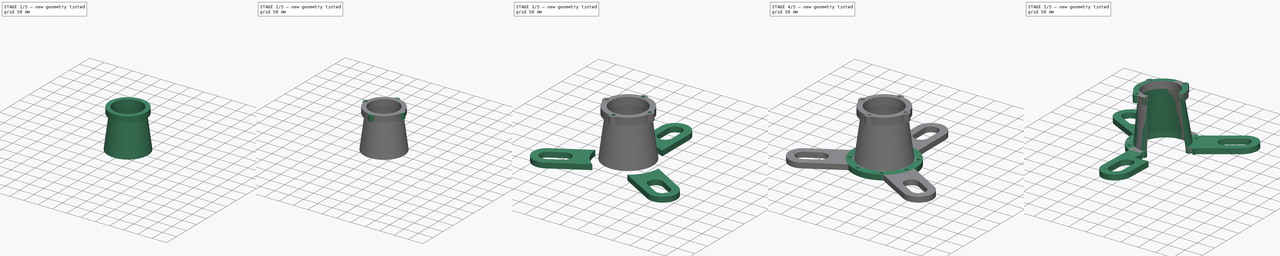
[diagram: build sequence overview — one tinted view per stage of 5, left to right]
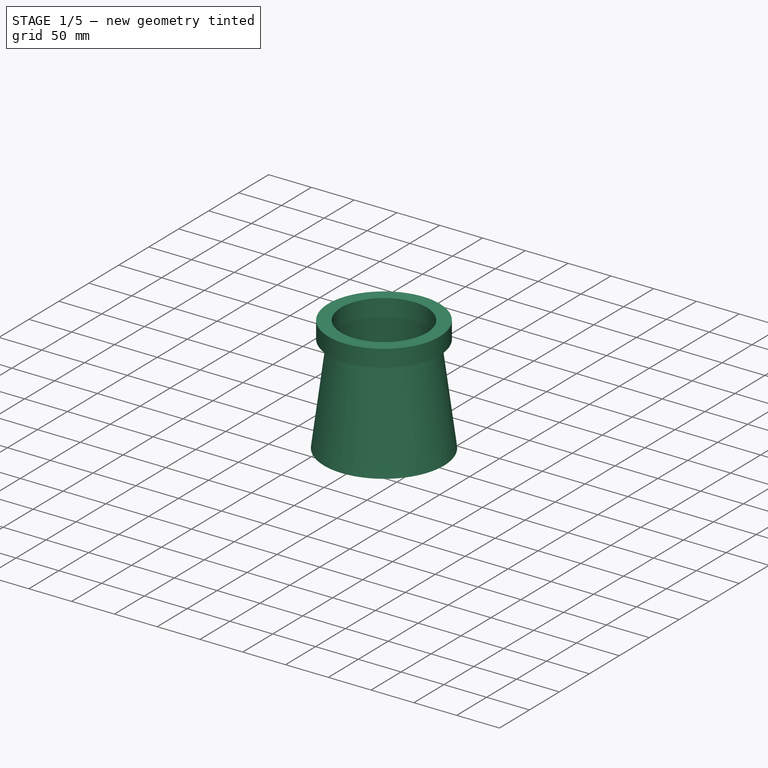
[diagram: stage 1 of 5 — iso view after this stage's code; geometry added in this stage tinted green]
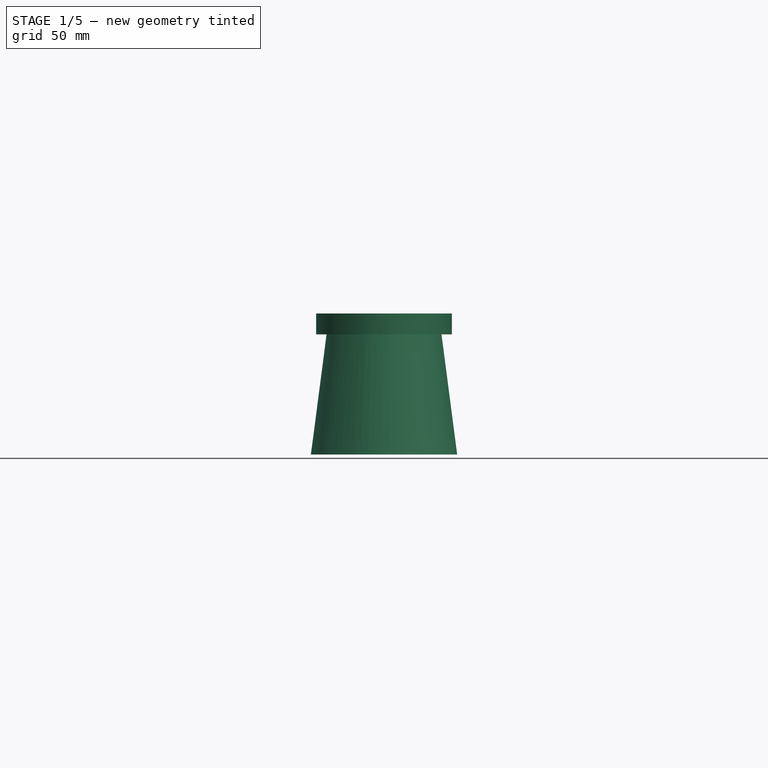
[diagram: stage 1 of 5 — front view after this stage's code; geometry added in this stage tinted green]
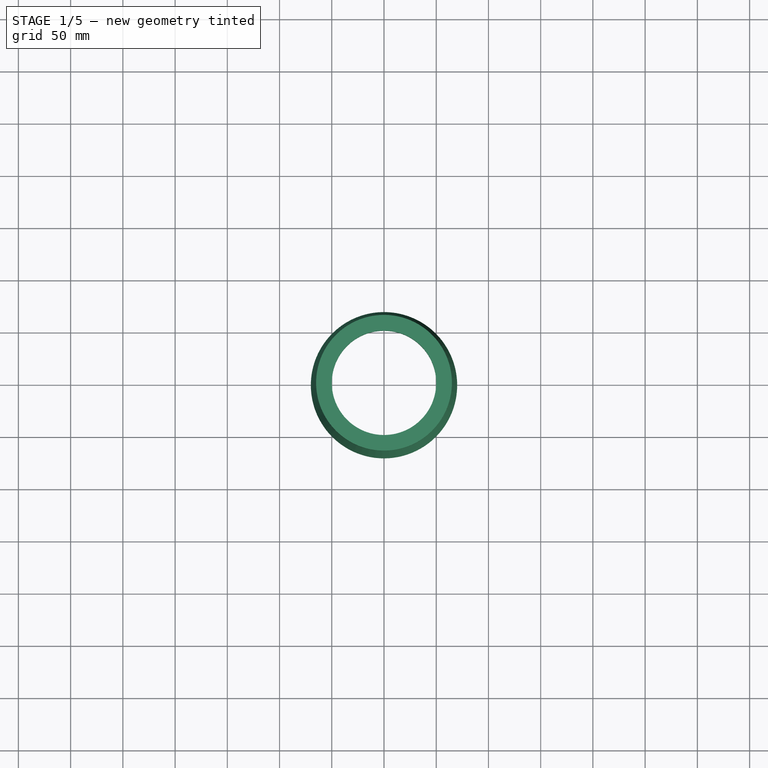
[diagram: stage 1 of 5 — top view after this stage's code; geometry added in this stage tinted green]
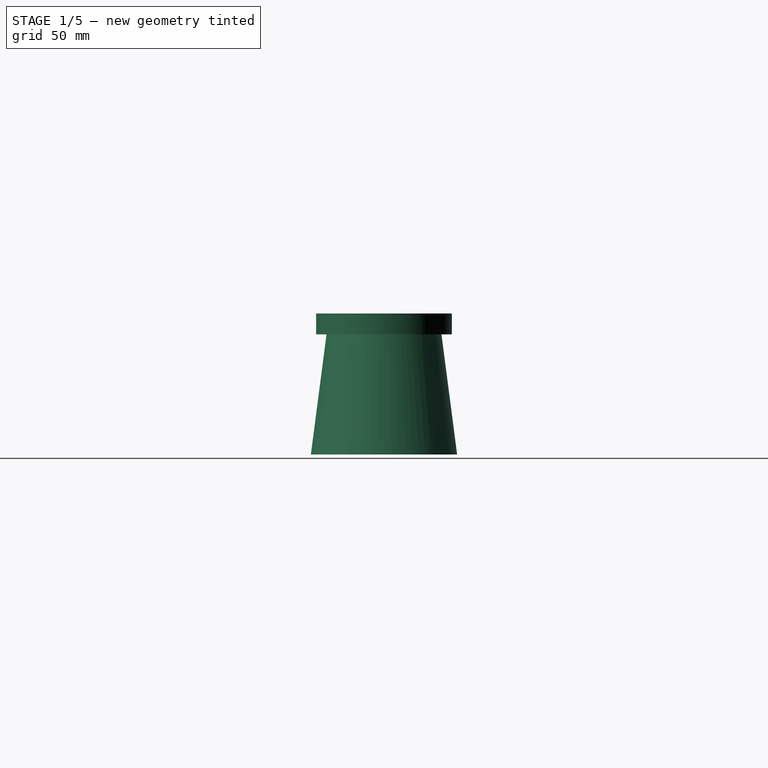
[diagram: stage 1 of 5 — right view after this stage's code; geometry added in this stage tinted green]
FCSTD DOCUMENT  (FreeCAD 0.16R)
Label: Ejer35-2
License: All rights reserved
LicenseURL: http://en.wikipedia.org/wiki/All_rights_reserved
objects: Sketcher::SketchObject×8, PartDesign::Pad×6, PartDesign::PolarPattern×3, PartDesign::Pocket×2, Part::Cone×1, Part::Thickness×1, Part::Box×1, Part::MultiFuse×1, Part::Cut×1
note: 32 computed .brp shape members not serialized (recipe doc carries the construction recipe); baked Part::Feature solids carry a one-line shape summary decoded from their .brp

FEATURE [Part::Cone] Cone  label="Cono"
  Angle = 360
  Height = 115
  Placement = pos=(0,0,15) rot=(0,0,1;0rad)
  Radius1 = 65
  Radius2 = 50
FEATURE [Part::Thickness] Thickness
  Faces = -> Cone [Face3,Face2]
  Intersection = false
  Join = 2
  Mode = 1
  SelfIntersection = false
  Value = 5
FEATURE [Sketcher::SketchObject] Sketch005
  Placement = pos=(0,0,130) rot=(0,0,1;0rad)
  Support = -> Thickness [Face2]
  sketch-geometry (2):
    g0: Circle CenterX=0 CenterY=0 CenterZ=0 NormalX=0 NormalY=0 NormalZ=1 Radius=50
    g1: Circle CenterX=0 CenterY=0 CenterZ=0 NormalX=0 NormalY=0 NormalZ=1 Radius=65
  constraints (5):
    c: Coincident(g0,g-1)
    c: PointOnObject(g1,g-1)
    c: Coincident(g0,g1)
    c: Radius(g0) = 50
    c: Radius(g1) = 65
FEATURE [PartDesign::Pad] Pad004
  Length = 20
  Length2 = 100
  Sketch = -> Sketch005
  Type = 0
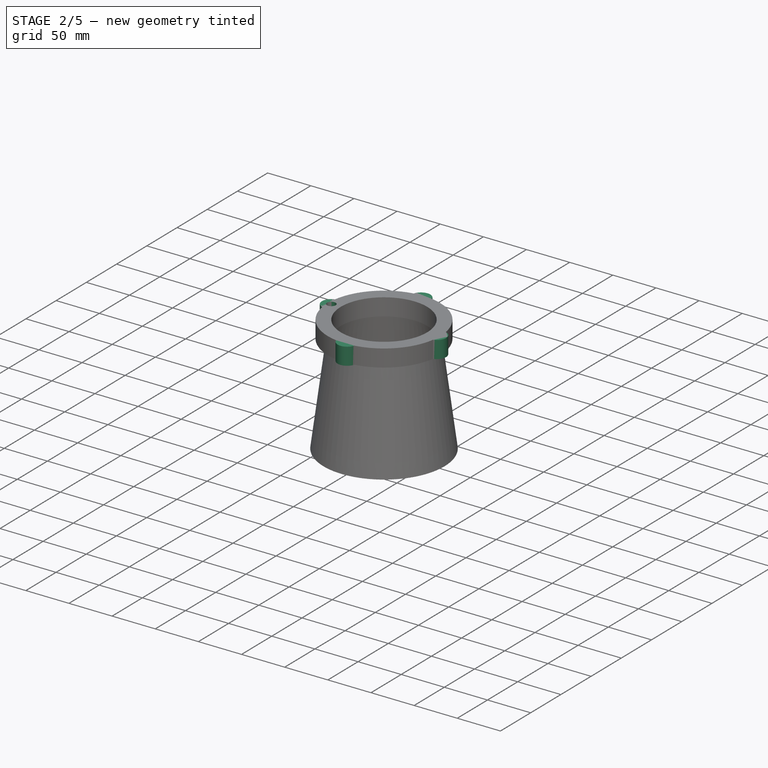
[diagram: stage 2 of 5 — iso view after this stage's code; geometry added in this stage tinted green]
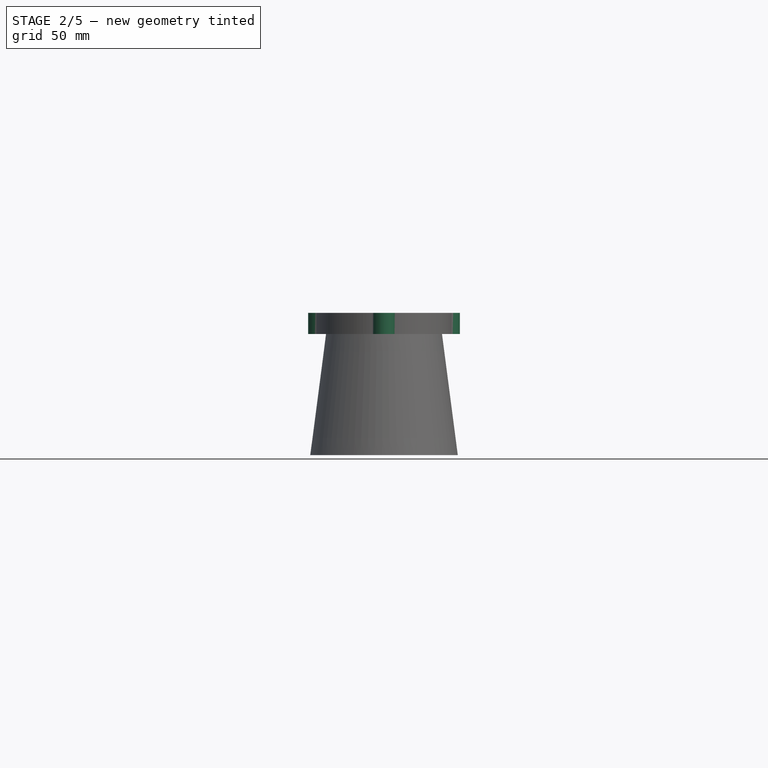
[diagram: stage 2 of 5 — front view after this stage's code; geometry added in this stage tinted green]
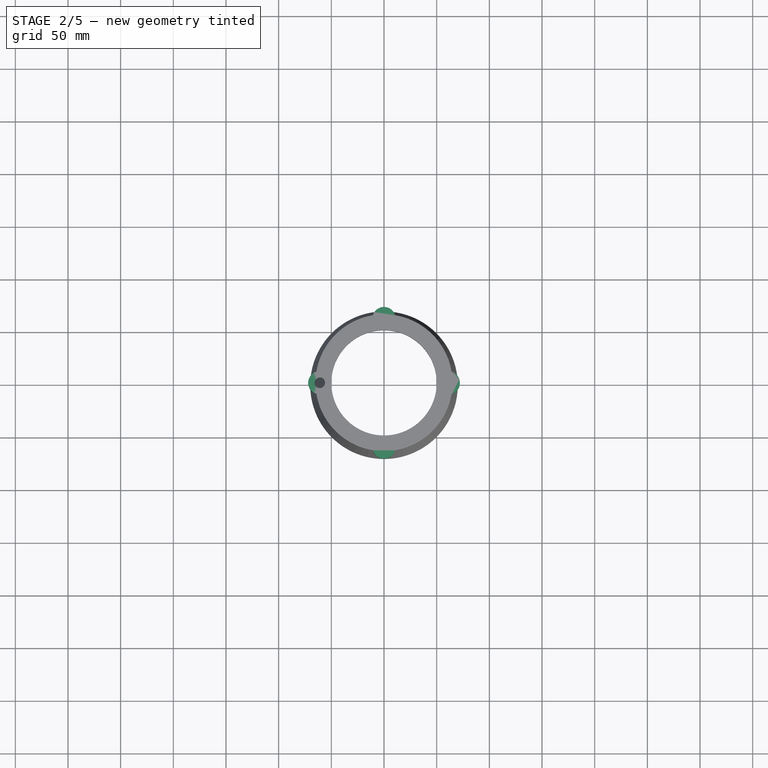
[diagram: stage 2 of 5 — top view after this stage's code; geometry added in this stage tinted green]
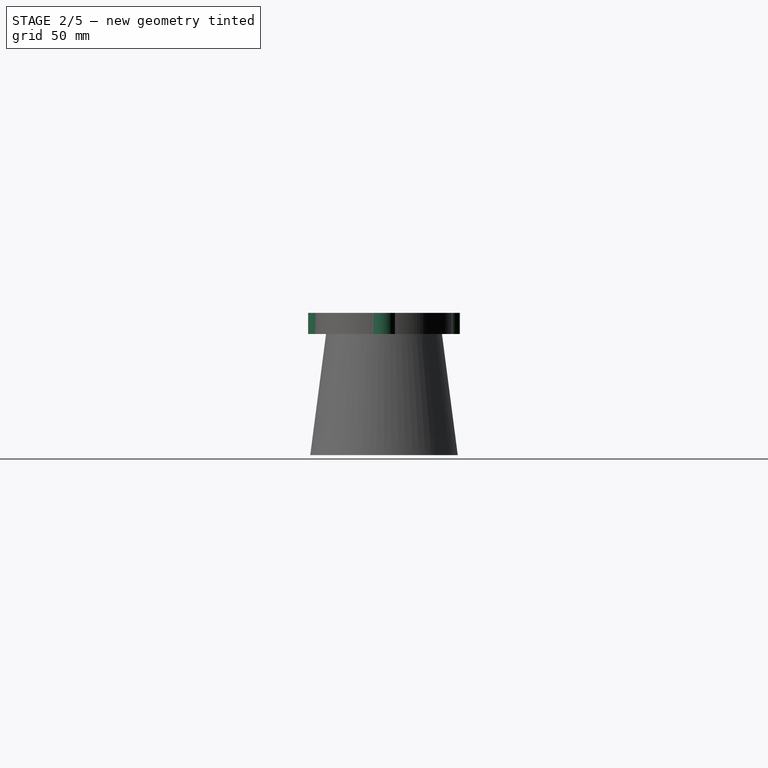
[diagram: stage 2 of 5 — right view after this stage's code; geometry added in this stage tinted green]
FEATURE [Sketcher::SketchObject] Sketch006
  Placement = pos=(0,0,150) rot=(0,0,1;0rad)
  Support = -> Pad004 [Face6]
  sketch-geometry (2):
    g0: Circle [constr] CenterX=0 CenterY=0 CenterZ=0 NormalX=0 NormalY=0 NormalZ=1 Radius=50
    g1: Circle CenterX=-61 CenterY=0 CenterZ=0 NormalX=0 NormalY=0 NormalZ=1 Radius=11
  constraints (5):
    c: Coincident(g0,g-1)
    c: Radius(g0) = 50
    c: PointOnObject(g1,g-1)
    c: Radius(g1) = 11
    c: Tangent(g1,g0)
FEATURE [PartDesign::Pad] Pad005
  Length = 20
  Length2 = 100
  Reversed = true
  Sketch = -> Sketch006
  Type = 0
FEATURE [PartDesign::PolarPattern] PolarPattern001
  Angle = 360
  Axis = -> Sketch006 [N_Axis]
  Occurrences = 4
  Originals = -> [Pad005]
FEATURE [Sketcher::SketchObject] Sketch007
  ExternalGeometry = -> [PolarPattern001]
  Placement = pos=(0,0,150) rot=(0,0,1;0rad)
  Support = -> PolarPattern001 [Face9]
  sketch-geometry (1):
    g0: Circle CenterX=-61 CenterY=0 CenterZ=0 NormalX=0 NormalY=0 NormalZ=1 Radius=5
  constraints (2):
    c: Coincident(g0,g-3)
    c: Radius(g0) = 5
FEATURE [PartDesign::Pocket] Pocket001
  Length = 20
  Sketch = -> Sketch007
  Type = 0
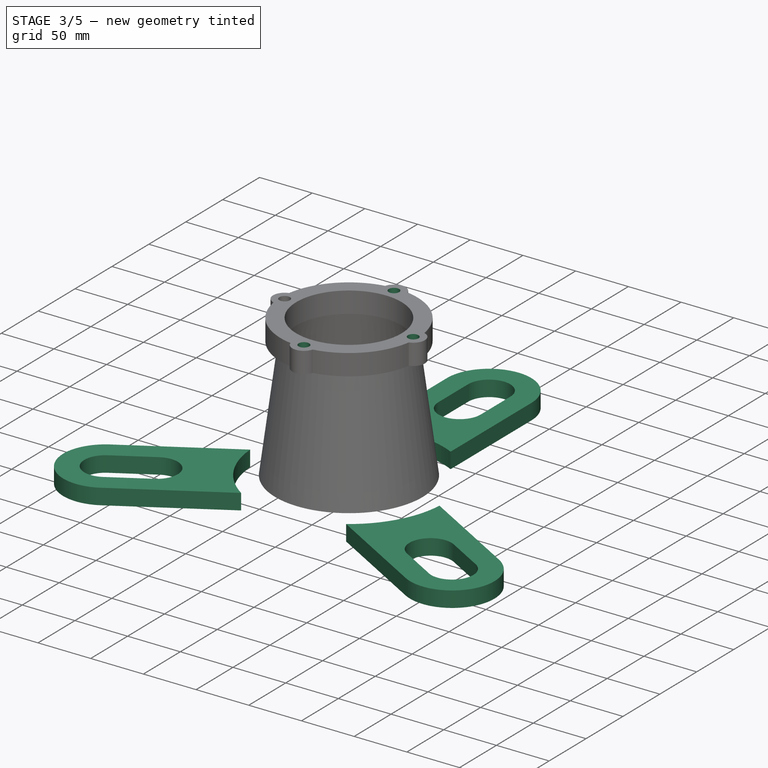
[diagram: stage 3 of 5 — iso view after this stage's code; geometry added in this stage tinted green]
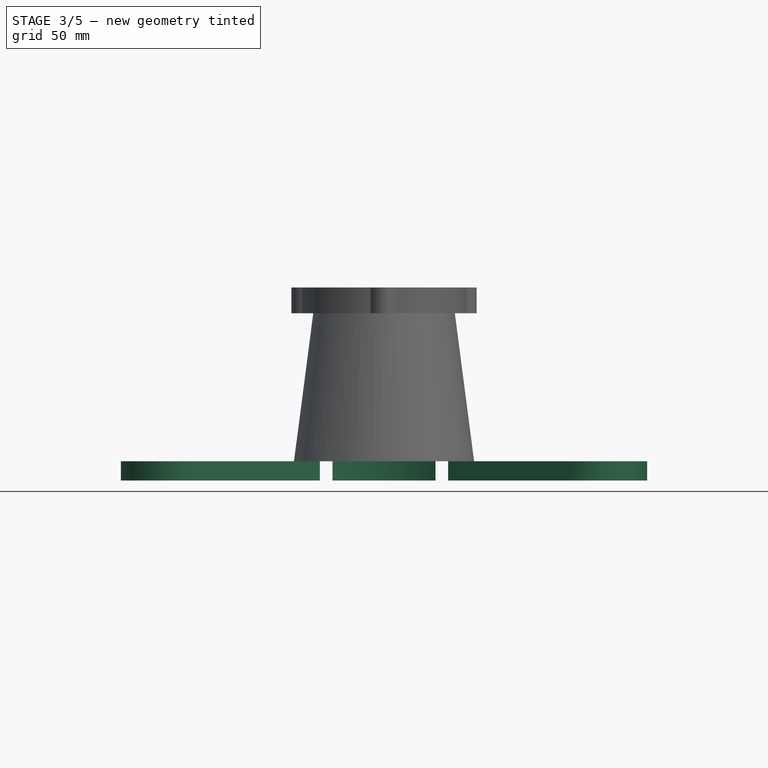
[diagram: stage 3 of 5 — front view after this stage's code; geometry added in this stage tinted green]
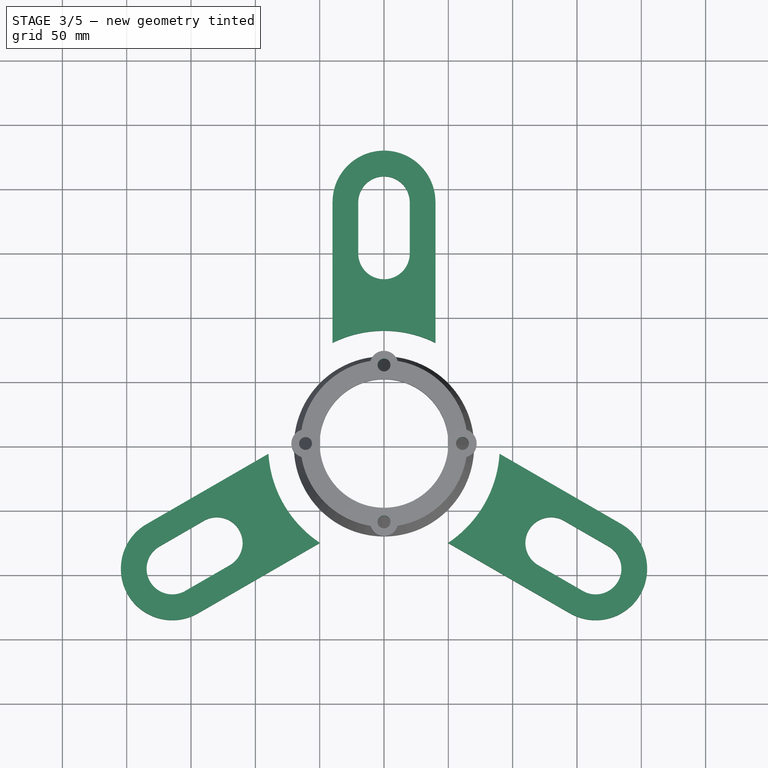
[diagram: stage 3 of 5 — top view after this stage's code; geometry added in this stage tinted green]
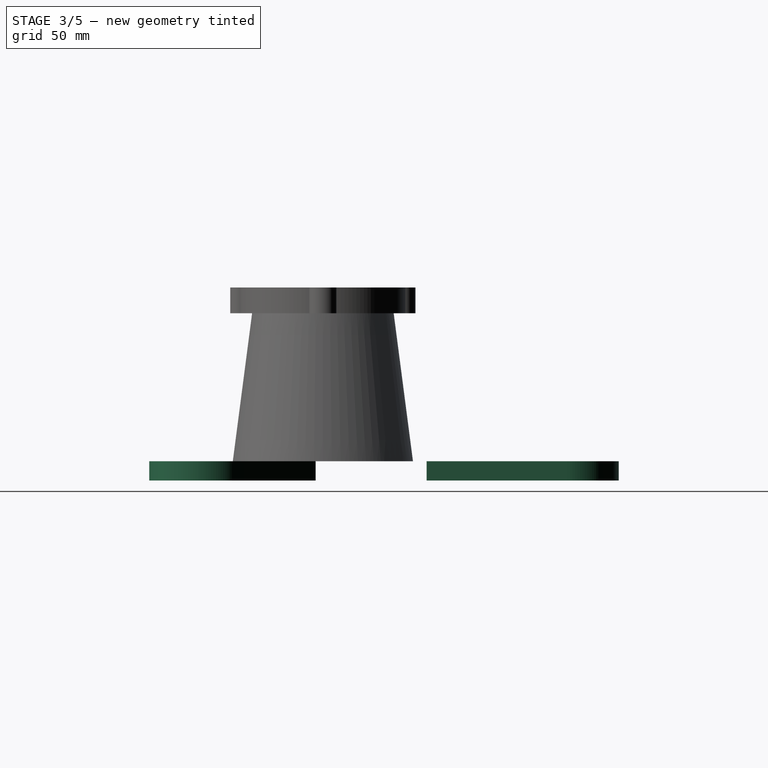
[diagram: stage 3 of 5 — right view after this stage's code; geometry added in this stage tinted green]
FEATURE [Sketcher::SketchObject] Sketch002
  sketch-geometry (11):
    g0: Circle [constr] CenterX=0 CenterY=0 CenterZ=0 NormalX=0 NormalY=0 NormalZ=1 Radius=150
    g1: LineSegment [constr] StartX=0 StartY=0 StartZ=0 EndX=-189.847 EndY=-109.608 EndZ=0
    g2: LineSegment [constr] StartX=0 StartY=0 StartZ=0 EndX=189.847 EndY=-109.608 EndZ=0
    g3: ArcOfCircle CenterX=-164.545 CenterY=-95 CenterZ=0 NormalX=0 NormalY=0 NormalZ=1 Radius=20 StartAngle=2.0944 EndAngle=5.23599
    g4: ArcOfCircle CenterX=-129.904 CenterY=-75 CenterZ=0 NormalX=0 NormalY=0 NormalZ=1 Radius=20 StartAngle=5.23599 EndAngle=8.37758
    g5: LineSegment StartX=-154.545 StartY=-112.321 StartZ=0 EndX=-119.904 EndY=-92.3205 EndZ=0
    g6: LineSegment StartX=-174.545 StartY=-77.6795 StartZ=0 EndX=-139.904 EndY=-57.6795 EndZ=0
    g7: LineSegment StartX=-184.545 StartY=-60.359 StartZ=0 EndX=-89.8212 EndY=-5.67027 EndZ=0
    g8: LineSegment StartX=-144.545 StartY=-129.641 StartZ=0 EndX=-49.8212 EndY=-74.9523 EndZ=0
    g9: ArcOfCircle CenterX=-164.545 CenterY=-95 CenterZ=0 NormalX=0 NormalY=0 NormalZ=1 Radius=40 StartAngle=2.0944 EndAngle=5.23599
    g10: ArcOfCircle CenterX=0 CenterY=0 CenterZ=0 NormalX=0 NormalY=0 NormalZ=1 Radius=90 StartAngle=3.20464 EndAngle=4.12575
  constraints (28):
    c: Coincident(g0,g-1)
    c: Radius(g0) = 150
    c: Coincident(g1,g-1)
    c: Coincident(g2,g-1)
    c: Symmetric(g2,g1,g-2)
    c: Angle(g1,g2) = 2.0944
    c: Tangent(g3,g6) = 1.5708
    c: Tangent(g3,g5) = -1.5708
    c: Tangent(g5,g4) = -1.5708
    c: Tangent(g6,g4) = 1.5708
    c: Equal(g3,g4)
    c: PointOnObject(g3,g1)
    c: PointOnObject(g4,g1)
    c: Radius(g3) = 20
    c: Distance(g3,g4) = 40
    c: Symmetric(g8,g7,g1)
    c: Parallel(g8,g7)
    c: Distance(g7,g8) = 80
    c: Coincident(g9,g3)
    c: Coincident(g9,g7)
    c: Coincident(g9,g8)
    c: Tangent(g9,g8)
    c: Tangent(g9,g7)
    c: Coincident(g10,g-1)
    c: Coincident(g10,g7)
    c: Coincident(g10,g8)
    c: Radius(g10) = 90
    c: PointOnObject(g4,g0)
FEATURE [PartDesign::Pad] Pad001
  Length = 15
  Length2 = 100
  Sketch = -> Sketch002
  Type = 0
FEATURE [Sketcher::SketchObject] Sketch003
  Placement = pos=(0,0,0) rot=(0,0,1;2.0944rad)
  sketch-geometry (11):
    g0: Circle [constr] CenterX=0 CenterY=0 CenterZ=0 NormalX=0 NormalY=0 NormalZ=1 Radius=150
    g1: LineSegment [constr] StartX=0 StartY=0 StartZ=0 EndX=-189.847 EndY=-109.608 EndZ=0
    g2: LineSegment [constr] StartX=0 StartY=0 StartZ=0 EndX=189.847 EndY=-109.608 EndZ=0
    g3: ArcOfCircle CenterX=-164.545 CenterY=-95 CenterZ=0 NormalX=0 NormalY=0 NormalZ=1 Radius=20 StartAngle=2.0944 EndAngle=5.23599
    g4: ArcOfCircle CenterX=-129.904 CenterY=-75 CenterZ=0 NormalX=0 NormalY=0 NormalZ=1 Radius=20 StartAngle=5.23599 EndAngle=8.37758
    g5: LineSegment StartX=-154.545 StartY=-112.321 StartZ=0 EndX=-119.904 EndY=-92.3205 EndZ=0
    g6: LineSegment StartX=-174.545 StartY=-77.6795 StartZ=0 EndX=-139.904 EndY=-57.6795 EndZ=0
    g7: LineSegment StartX=-184.545 StartY=-60.359 StartZ=0 EndX=-89.8212 EndY=-5.67027 EndZ=0
    g8: LineSegment StartX=-144.545 StartY=-129.641 StartZ=0 EndX=-49.8212 EndY=-74.9523 EndZ=0
    g9: ArcOfCircle CenterX=-164.545 CenterY=-95 CenterZ=0 NormalX=0 NormalY=0 NormalZ=1 Radius=40 StartAngle=2.0944 EndAngle=5.23599
    g10: ArcOfCircle CenterX=0 CenterY=0 CenterZ=0 NormalX=0 NormalY=0 NormalZ=1 Radius=90 StartAngle=3.20464 EndAngle=4.12575
  constraints (28):
    c: Coincident(g0,g-1)
    c: Radius(g0) = 150
    c: Coincident(g1,g-1)
    c: Coincident(g2,g-1)
    c: Symmetric(g2,g1,g-2)
    c: Angle(g1,g2) = 2.0944
    c: Tangent(g3,g6) = 1.5708
    c: Tangent(g3,g5) = -1.5708
    c: Tangent(g5,g4) = -1.5708
    c: Tangent(g6,g4) = 1.5708
    c: Equal(g3,g4)
    c: PointOnObject(g3,g1)
    c: PointOnObject(g4,g1)
    c: Radius(g3) = 20
    c: Distance(g3,g4) = 40
    c: Symmetric(g8,g7,g1)
    c: Parallel(g8,g7)
    c: Distance(g7,g8) = 80
    c: Coincident(g9,g3)
    c: Coincident(g9,g7)
    c: Coincident(g9,g8)
    c: Tangent(g9,g8)
    c: Tangent(g9,g7)
    c: Coincident(g10,g-1)
    c: Coincident(g10,g7)
    c: Coincident(g10,g8)
    c: Radius(g10) = 90
    c: PointOnObject(g4,g0)
FEATURE [Sketcher::SketchObject] Sketch004
  Placement = pos=(0,0,0) rot=(0,0,1;4.18879rad)
  sketch-geometry (11):
    g0: Circle [constr] CenterX=0 CenterY=0 CenterZ=0 NormalX=0 NormalY=0 NormalZ=1 Radius=150
    g1: LineSegment [constr] StartX=0 StartY=0 StartZ=0 EndX=-189.847 EndY=-109.608 EndZ=0
    g2: LineSegment [constr] StartX=0 StartY=0 StartZ=0 EndX=189.847 EndY=-109.608 EndZ=0
    g3: ArcOfCircle CenterX=-164.545 CenterY=-95 CenterZ=0 NormalX=0 NormalY=0 NormalZ=1 Radius=20 StartAngle=2.0944 EndAngle=5.23599
    g4: ArcOfCircle CenterX=-129.904 CenterY=-75 CenterZ=0 NormalX=0 NormalY=0 NormalZ=1 Radius=20 StartAngle=5.23599 EndAngle=8.37758
    g5: LineSegment StartX=-154.545 StartY=-112.321 StartZ=0 EndX=-119.904 EndY=-92.3205 EndZ=0
    g6: LineSegment StartX=-174.545 StartY=-77.6795 StartZ=0 EndX=-139.904 EndY=-57.6795 EndZ=0
    g7: LineSegment StartX=-184.545 StartY=-60.359 StartZ=0 EndX=-89.8212 EndY=-5.67027 EndZ=0
    g8: LineSegment StartX=-144.545 StartY=-129.641 StartZ=0 EndX=-49.8212 EndY=-74.9523 EndZ=0
    g9: ArcOfCircle CenterX=-164.545 CenterY=-95 CenterZ=0 NormalX=0 NormalY=0 NormalZ=1 Radius=40 StartAngle=2.0944 EndAngle=5.23599
    g10: ArcOfCircle CenterX=0 CenterY=0 CenterZ=0 NormalX=0 NormalY=0 NormalZ=1 Radius=90 StartAngle=3.20464 EndAngle=4.12575
  constraints (28):
    c: Coincident(g0,g-1)
    c: Radius(g0) = 150
    c: Coincident(g1,g-1)
    c: Coincident(g2,g-1)
    c: Symmetric(g2,g1,g-2)
    c: Angle(g1,g2) = 2.0944
    c: Tangent(g3,g6) = 1.5708
    c: Tangent(g3,g5) = -1.5708
    c: Tangent(g5,g4) = -1.5708
    c: Tangent(g6,g4) = 1.5708
    c: Equal(g3,g4)
    c: PointOnObject(g3,g1)
    c: PointOnObject(g4,g1)
    c: Radius(g3) = 20
    c: Distance(g3,g4) = 40
    c: Symmetric(g8,g7,g1)
    c: Parallel(g8,g7)
    c: Distance(g7,g8) = 80
    c: Coincident(g9,g3)
    c: Coincident(g9,g7)
    c: Coincident(g9,g8)
    c: Tangent(g9,g8)
    c: Tangent(g9,g7)
    c: Coincident(g10,g-1)
    c: Coincident(g10,g7)
    c: Coincident(g10,g8)
    c: Radius(g10) = 90
    c: PointOnObject(g4,g0)
FEATURE [PartDesign::Pad] Pad002
  Length = 15
  Length2 = 100
  Placement = pos=(0,0,0) rot=(0,0,1;2.0944rad)
  Sketch = -> Sketch003
  Type = 0
FEATURE [PartDesign::Pad] Pad003
  Length = 15
  Length2 = 100
  Placement = pos=(0,0,0) rot=(0,0,1;4.18879rad)
  Sketch = -> Sketch004
  Type = 0
FEATURE [PartDesign::PolarPattern] PolarPattern002
  Angle = 360
  Axis = -> Sketch007 [N_Axis]
  Occurrences = 4
  Originals = -> [Pocket001]
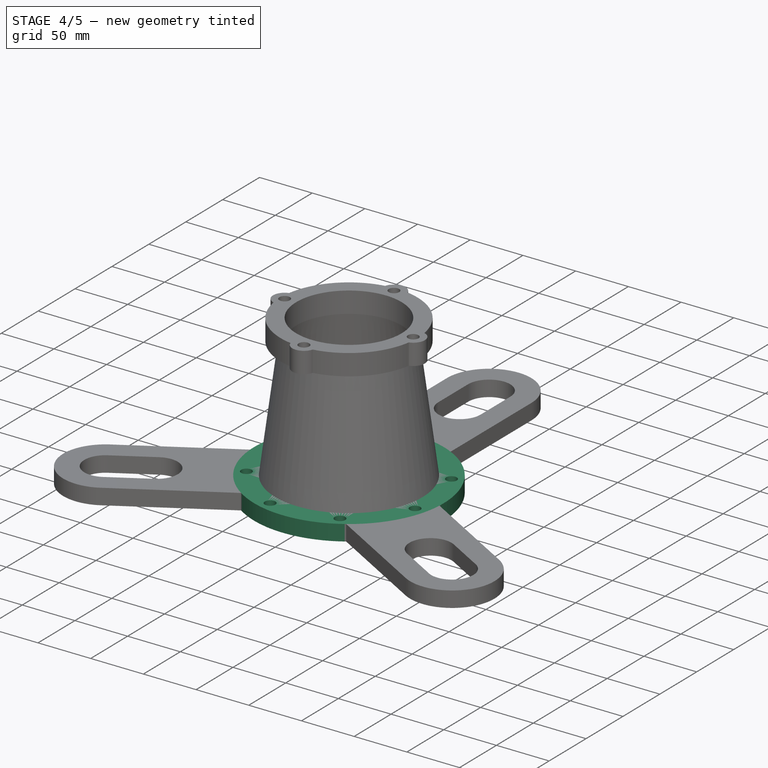
[diagram: stage 4 of 5 — iso view after this stage's code; geometry added in this stage tinted green]
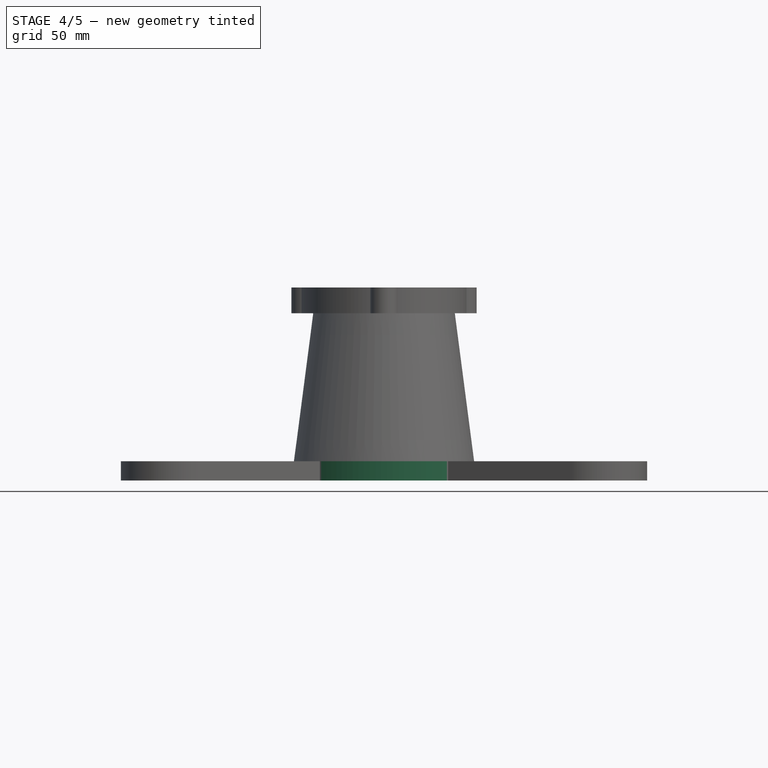
[diagram: stage 4 of 5 — front view after this stage's code; geometry added in this stage tinted green]
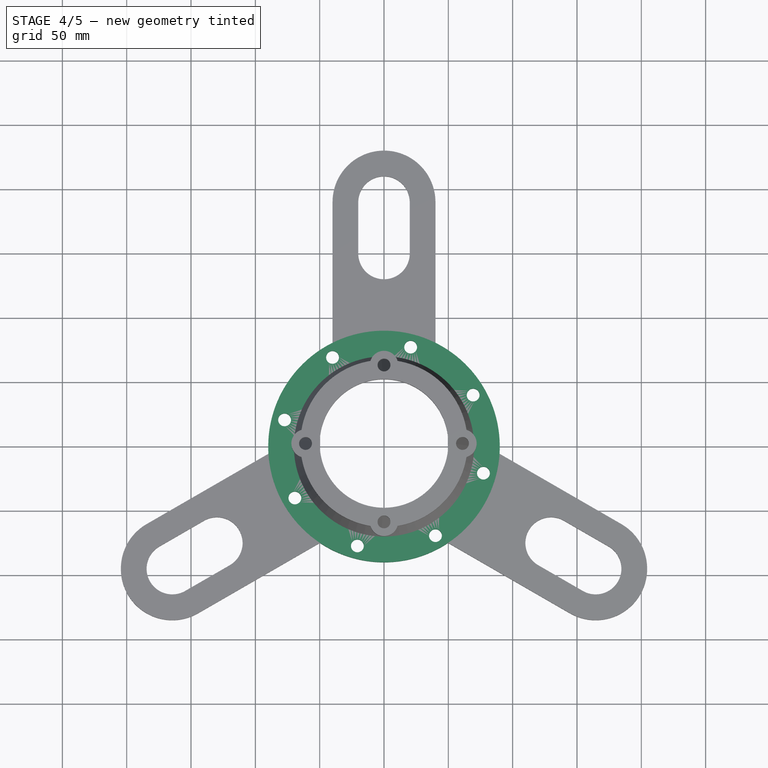
[diagram: stage 4 of 5 — top view after this stage's code; geometry added in this stage tinted green]
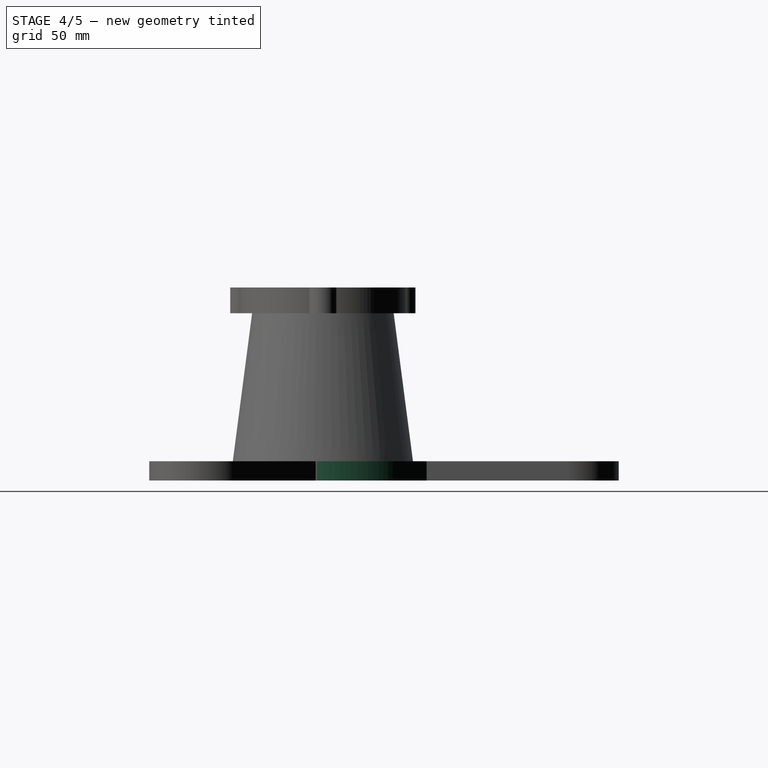
[diagram: stage 4 of 5 — right view after this stage's code; geometry added in this stage tinted green]
FEATURE [Sketcher::SketchObject] Sketch
  sketch-geometry (2):
    g0: Circle CenterX=0 CenterY=0 CenterZ=0 NormalX=0 NormalY=0 NormalZ=1 Radius=65
    g1: Circle CenterX=0 CenterY=0 CenterZ=0 NormalX=0 NormalY=0 NormalZ=1 Radius=90
  constraints (4):
    c: Coincident(g0,g-1)
    c: Coincident(g1,g-1)
    c: Radius(g0) = 65
    c: Radius(g1) = 90
FEATURE [PartDesign::Pad] Pad
  Length = 15
  Length2 = 100
  Sketch = -> Sketch
  Type = 0
FEATURE [Sketcher::SketchObject] Sketch001
  Placement = pos=(0,0,15) rot=(0,0,1;0rad)
  Support = -> Pad [Face4]
  sketch-geometry (4):
    g0: LineSegment [constr] StartX=0 StartY=0 StartZ=0 EndX=-170.6 EndY=-98.4959 EndZ=0
    g1: LineSegment [constr] StartX=0 StartY=0 StartZ=0 EndX=170.6 EndY=-98.4959 EndZ=0
    g2: Circle [constr] CenterX=0 CenterY=0 CenterZ=0 NormalX=0 NormalY=0 NormalZ=1 Radius=80
    g3: Circle CenterX=-69.282 CenterY=-40 CenterZ=0 NormalX=0 NormalY=0 NormalZ=1 Radius=5
  constraints (9):
    c: Coincident(g0,g-1)
    c: Coincident(g1,g-1)
    c: Angle(g0,g1) = 2.0944
    c: Symmetric(g0,g1,g-2)
    c: Coincident(g2,g-1)
    c: Radius(g2) = 80
    c: PointOnObject(g3,g2)
    c: PointOnObject(g3,g0)
    c: Radius(g3) = 5
FEATURE [PartDesign::Pocket] Pocket
  Length = 5
  Sketch = -> Sketch001
  Type = 1
FEATURE [PartDesign::PolarPattern] PolarPattern
  Angle = 360
  Axis = -> Sketch001 [N_Axis]
  Occurrences = 8
  Originals = -> [Pocket]
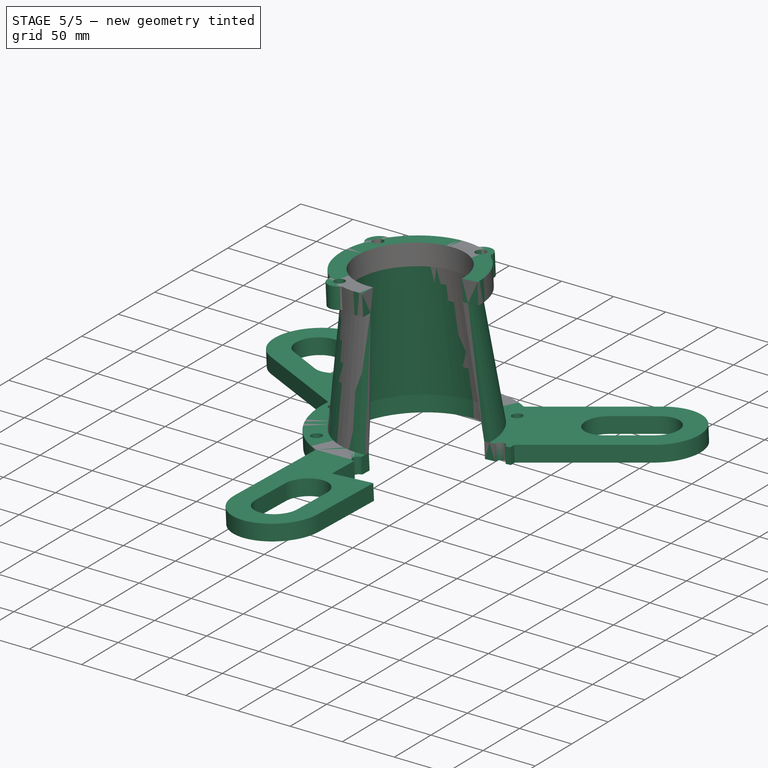
[diagram: stage 5 of 5 — iso view after this stage's code; geometry added in this stage tinted green]
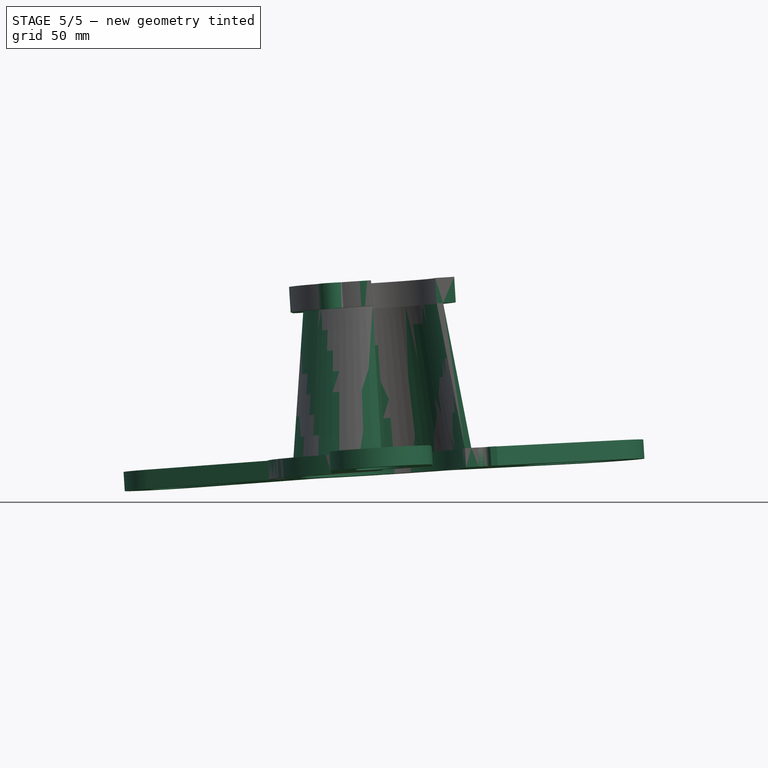
[diagram: stage 5 of 5 — front view after this stage's code; geometry added in this stage tinted green]
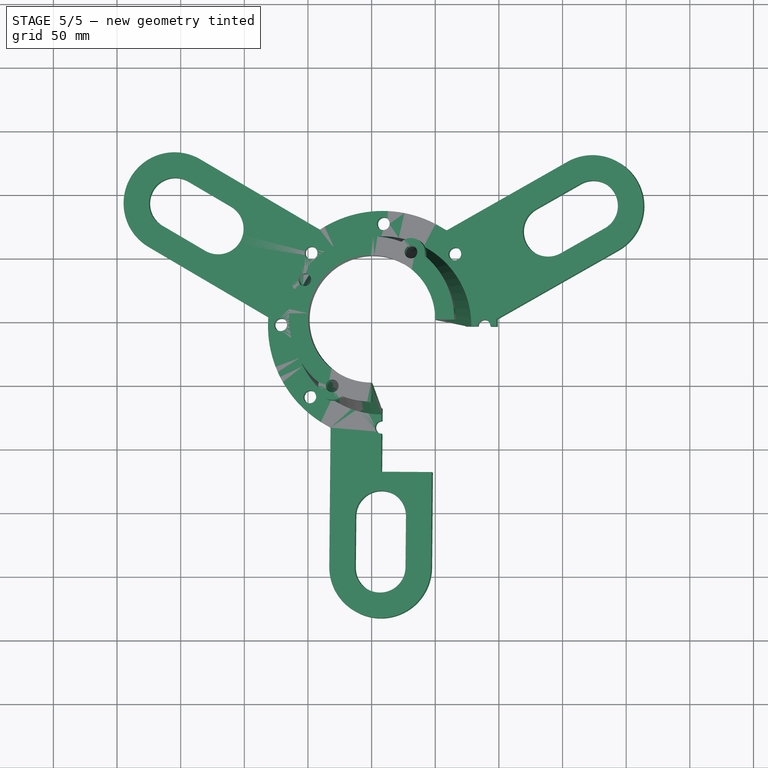
[diagram: stage 5 of 5 — top view after this stage's code; geometry added in this stage tinted green]
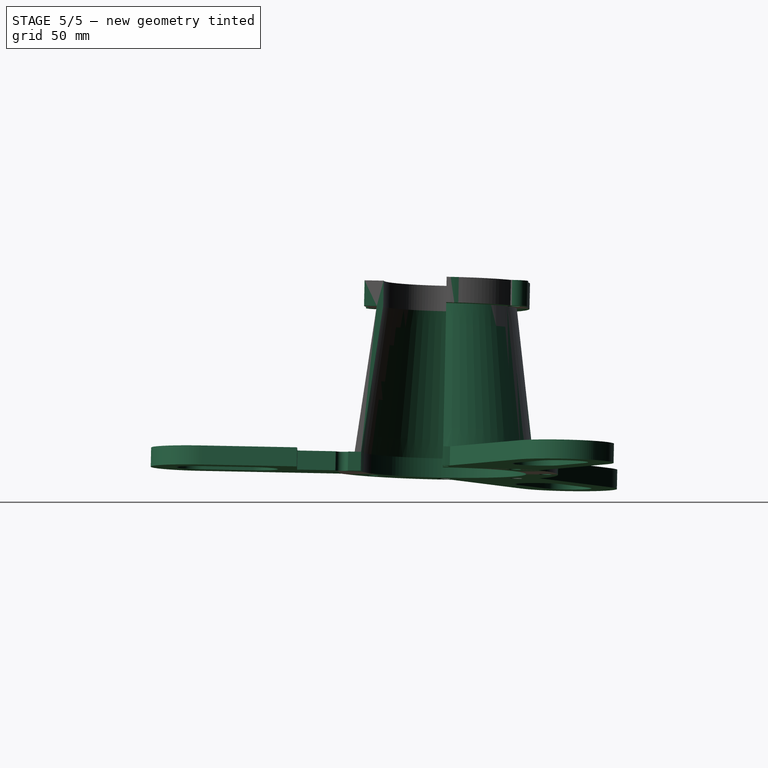
[diagram: stage 5 of 5 — right view after this stage's code; geometry added in this stage tinted green]
FEATURE [Part::Box] Box  label="Cubo"
  Height = 160
  Length = 115
  Placement = pos=(0,0,0) rot=(0,0,1;3.66519rad)
  Width = 108
FEATURE [Part::MultiFuse] Fusion
  Shapes = -> [PolarPattern002,Pad003,Pad002,Pad001,PolarPattern]
FEATURE [Part::Cut] Cut
  Base = -> Fusion
  Placement = pos=(9.3358,-3.03885,0.321651) rot=(-0.048785,-0.044258,0.997828;1.04053rad)
  Tool = -> Box
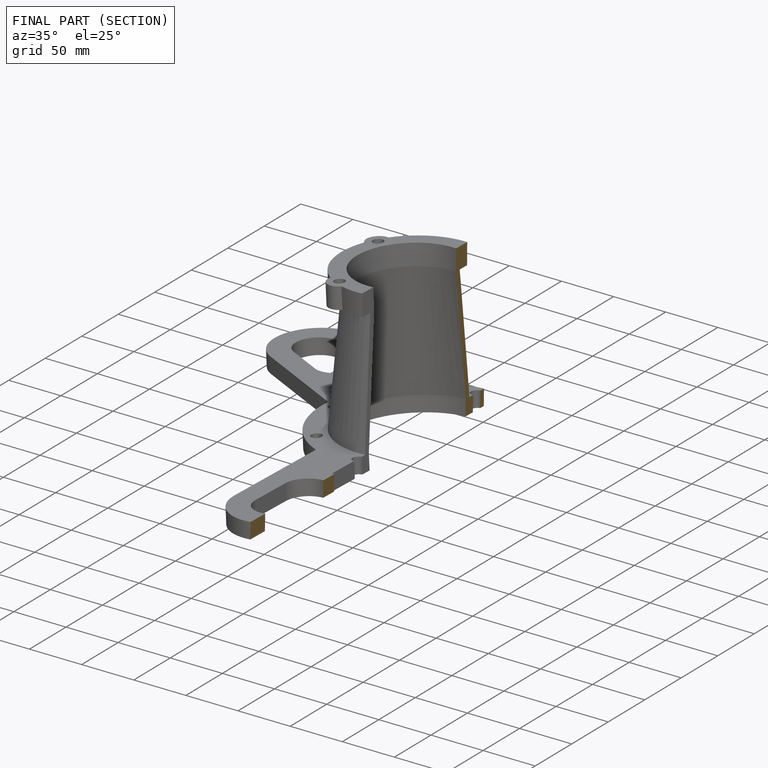
[diagram: finished part — half-section view (interior)]
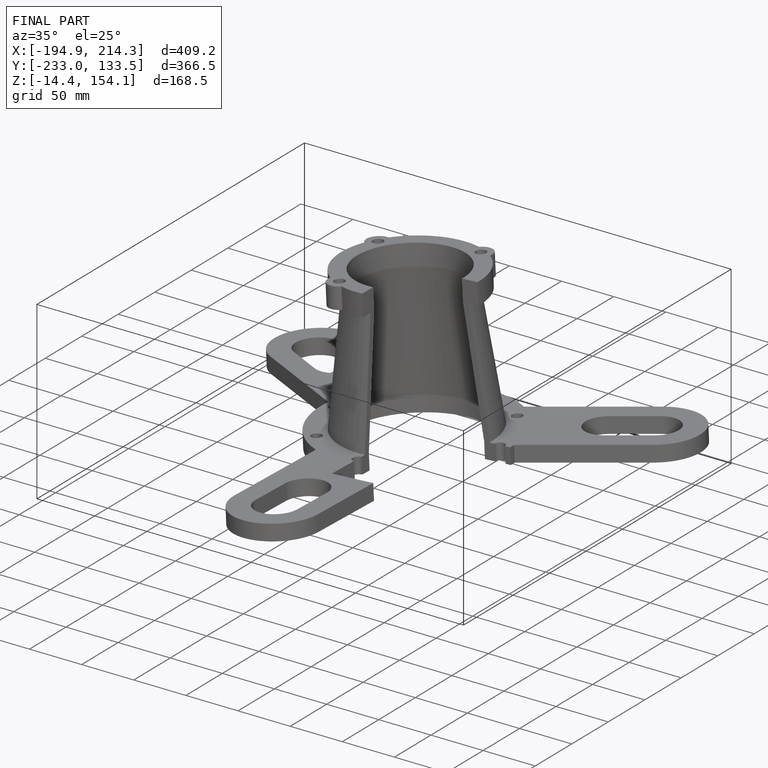
[diagram: finished part — iso view with bounding-box wireframe]
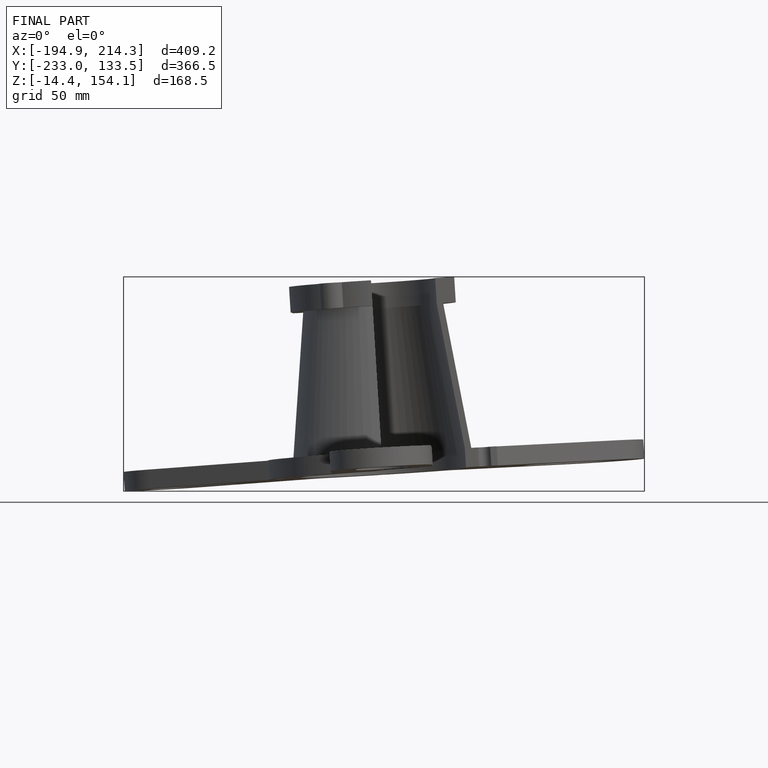
[diagram: finished part — front view with bounding-box wireframe]
